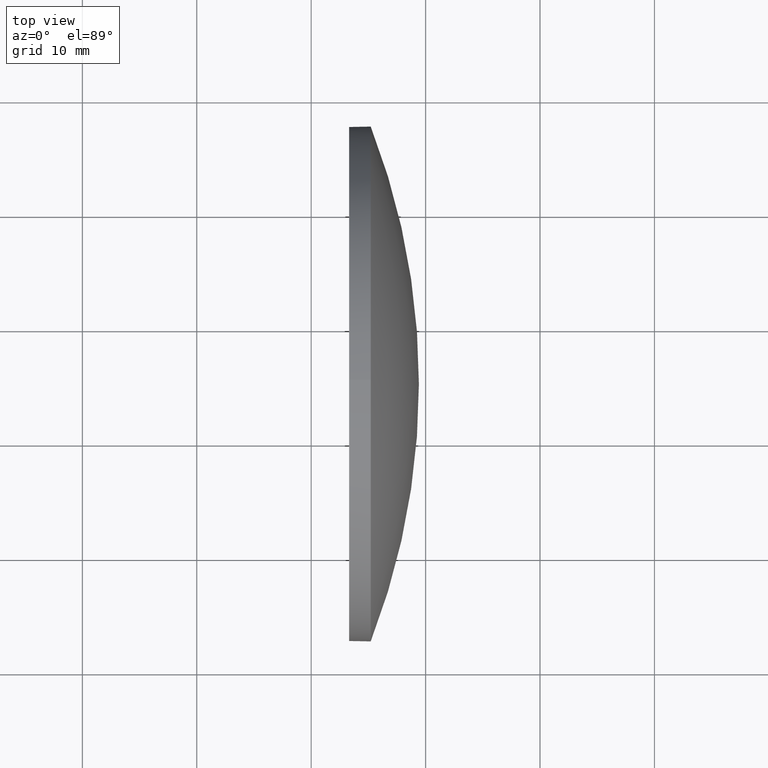
[diagram: clean part render]
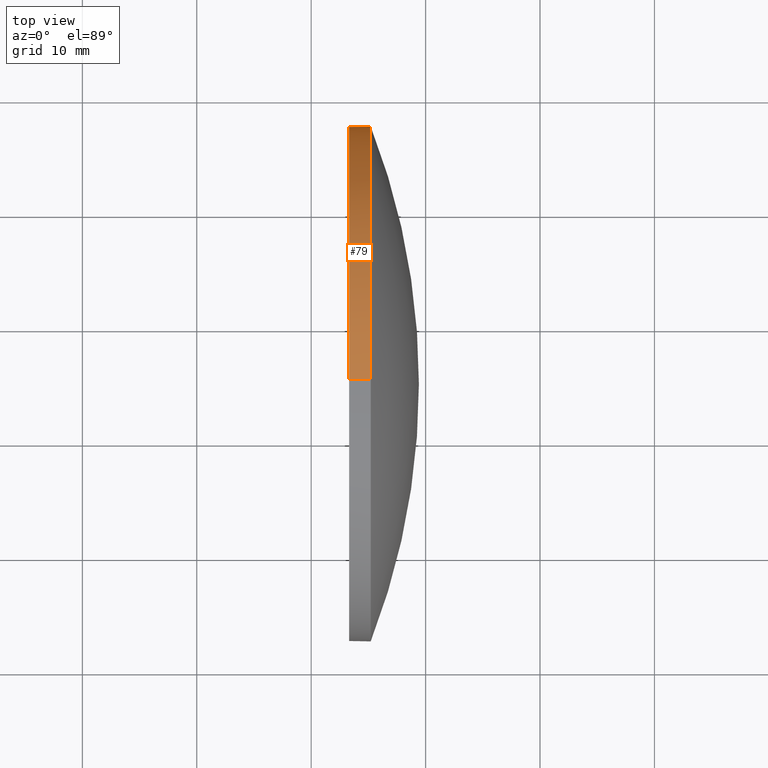
[diagram: same view with one face highlighted and labeled with its STEP entity id]
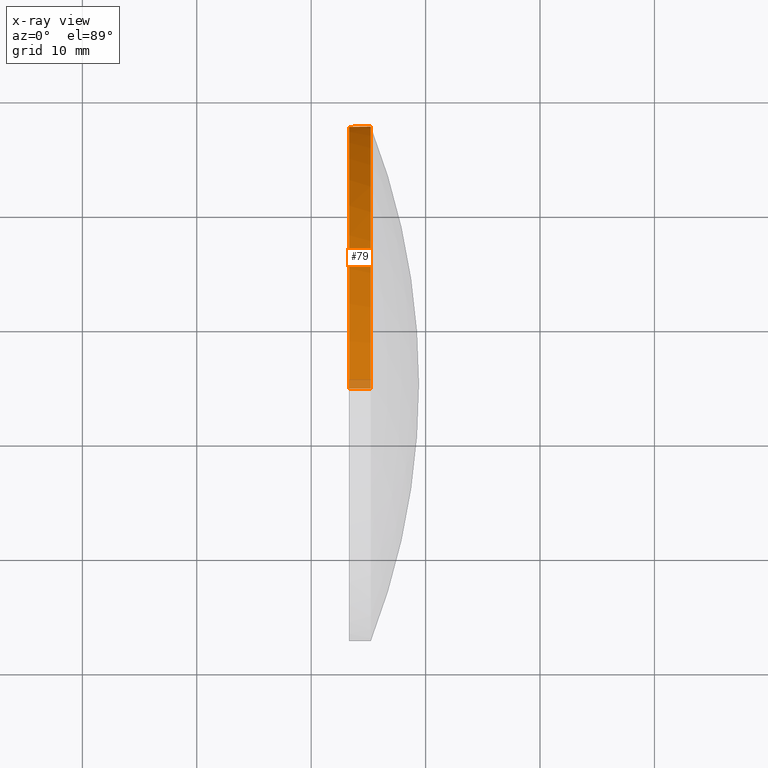
[diagram: x-ray of the same camera — body ghosted, the highlighted face saturated]
A machine part, top view. The second image highlights one B-rep face of the part: STEP entity #79.
The next image is the same camera in x-ray: the body ghosted, the highlighted face saturated — about 3% of this face is hidden behind the body in this view.
In plain terms, the highlighted cylindrical surface (partial cylindrical patch) has radius 22.5 mm, axis along (-1, -0, -0).
Its self-contained STEP definition (entity closure, byte-faithful):
#4 = VERTEX_POINT ( 'NONE', #144 ) ;
#6 = AXIS2_PLACEMENT_3D ( 'NONE', #55, #26, #130 ) ;
#9 = AXIS2_PLACEMENT_3D ( 'NONE', #157, #145, #174 ) ;
#10 = EDGE_CURVE ( 'NONE', #4, #63, #125, .T. ) ;
#14 = DIRECTION ( 'NONE',  ( -1.000000000000000000, -0.0000000000000000000, -0.0000000000000000000 ) ) ;
#16 = ORIENTED_EDGE ( 'NONE', *, *, #172, .T. ) ;
#26 = DIRECTION ( 'NONE',  ( -1.000000000000000000, -0.0000000000000000000, -0.0000000000000000000 ) ) ;
#28 = CARTESIAN_POINT ( 'NONE',  ( 108.6655743304436500, 65.02094537996225700, 0.0000000000000000000 ) ) ;
#33 = CIRCLE ( 'NONE', #9, 22.50000000000000700 ) ;
#35 = AXIS2_PLACEMENT_3D ( 'NONE', #28, #14, #185 ) ;
#38 = VECTOR ( 'NONE', #123, 1000.000000000000000 ) ;
#40 = CARTESIAN_POINT ( 'NONE',  ( 113.3137819577659700, 65.02094537996225700, -22.50000000000000700 ) ) ;
#42 = CYLINDRICAL_SURFACE ( 'NONE', #35, 22.50000000000000700 ) ;
#43 = AXIS2_PLACEMENT_3D ( 'NONE', #66, #173, #86 ) ;
#54 = CARTESIAN_POINT ( 'NONE',  ( 113.3137819577659700, 65.02094537996225700, 22.50000000000000700 ) ) ;
#55 = CARTESIAN_POINT ( 'NONE',  ( 115.2037819577659700, 65.02094537996225700, 0.0000000000000000000 ) ) ;
#63 = VERTEX_POINT ( 'NONE', #118 ) ;
#65 = FACE_OUTER_BOUND ( 'NONE', #100, .T. ) ;
#66 = CARTESIAN_POINT ( 'NONE',  ( 115.2037819577659700, 65.02094537996225700, 0.0000000000000000000 ) ) ;
#71 = DIRECTION ( 'NONE',  ( -1.000000000000000000, -0.0000000000000000000, -0.0000000000000000000 ) ) ;
#78 = LINE ( 'NONE', #138, #38 ) ;
#79 = ADVANCED_FACE ( 'NONE', ( #65 ), #42, .T. ) ;
#83 = ORIENTED_EDGE ( 'NONE', *, *, #113, .T. ) ;
#86 = DIRECTION ( 'NONE',  ( 0.0000000000000000000, 0.0000000000000000000, 1.000000000000000000 ) ) ;
#96 = VERTEX_POINT ( 'NONE', #54 ) ;
#100 = EDGE_LOOP ( 'NONE', ( #176, #16, #122, #154, #83 ) ) ;
#101 = EDGE_CURVE ( 'NONE', #96, #129, #33, .T. ) ;
#102 = CARTESIAN_POINT ( 'NONE',  ( 115.2037819577659700, 65.02094537996225700, 22.50000000000000700 ) ) ;
#111 = LINE ( 'NONE', #155, #121 ) ;
#113 = EDGE_CURVE ( 'NONE', #139, #4, #116, .T. ) ;
#116 = CIRCLE ( 'NONE', #43, 22.50000000000000700 ) ;
#118 = CARTESIAN_POINT ( 'NONE',  ( 115.2037819577659700, 65.02094537996225700, -22.50000000000000700 ) ) ;
#121 = VECTOR ( 'NONE', #71, 1000.000000000000000 ) ;
#122 = ORIENTED_EDGE ( 'NONE', *, *, #101, .F. ) ;
#123 = DIRECTION ( 'NONE',  ( -1.000000000000000000, -0.0000000000000000000, -0.0000000000000000000 ) ) ;
#125 = CIRCLE ( 'NONE', #6, 22.50000000000000700 ) ;
#129 = VERTEX_POINT ( 'NONE', #40 ) ;
#130 = DIRECTION ( 'NONE',  ( 0.0000000000000000000, 0.0000000000000000000, 1.000000000000000000 ) ) ;
#137 = EDGE_CURVE ( 'NONE', #139, #96, #111, .T. ) ;
#138 = CARTESIAN_POINT ( 'NONE',  ( 108.6655743304436500, 65.02094537996225700, -22.50000000000000700 ) ) ;
#139 = VERTEX_POINT ( 'NONE', #102 ) ;
#144 = CARTESIAN_POINT ( 'NONE',  ( 115.2037819577659700, 87.52094537996227100, 2.755455298081545200E-015 ) ) ;
#145 = DIRECTION ( 'NONE',  ( -1.000000000000000000, -0.0000000000000000000, -0.0000000000000000000 ) ) ;
#154 = ORIENTED_EDGE ( 'NONE', *, *, #137, .F. ) ;
#155 = CARTESIAN_POINT ( 'NONE',  ( 108.6655743304436500, 65.02094537996225700, 22.50000000000000700 ) ) ;
#157 = CARTESIAN_POINT ( 'NONE',  ( 113.3137819577659700, 65.02094537996225700, 0.0000000000000000000 ) ) ;
#172 = EDGE_CURVE ( 'NONE', #63, #129, #78, .T. ) ;
#173 = DIRECTION ( 'NONE',  ( -1.000000000000000000, -0.0000000000000000000, -0.0000000000000000000 ) ) ;
#174 = DIRECTION ( 'NONE',  ( 0.0000000000000000000, 0.0000000000000000000, 1.000000000000000000 ) ) ;
#176 = ORIENTED_EDGE ( 'NONE', *, *, #10, .T. ) ;
#185 = DIRECTION ( 'NONE',  ( 0.0000000000000000000, 0.0000000000000000000, 1.000000000000000000 ) ) ;